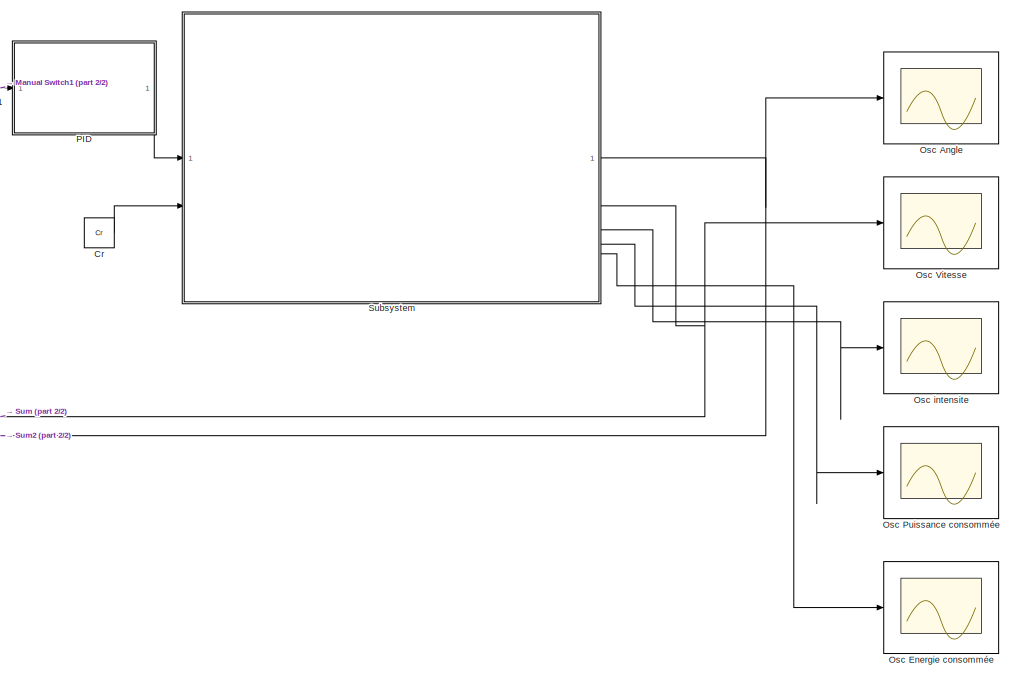
[diagram: root canvas - part 1/2, right side, full height]
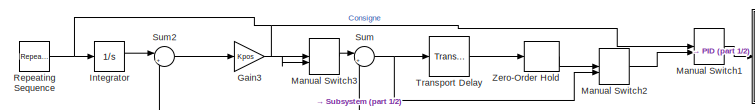
[diagram: root canvas - part 2/2, top left region]
MODEL slx_f45dd7cb239f
KIND model
CONFIG AbsTol = auto
CONFIG EnableMultiTasking = off
CONFIG FixedStep = auto
CONFIG InitFcn = parameters
CONFIG MaxStep = auto
CONFIG MinStep = auto
CONFIG RelTol = 1e-3
CONFIG SampleTimeConstraint = Unconstrained
CONFIG SolverName = ode23t
CONFIG StartFcn = parameters
CONFIG StartTime = 0.0
CONFIG StopTime = 0.9
BLOCK [Constant] Cr
  Value = Cr
BLOCK [Gain] Gain3
  Gain = Kpos
BLOCK [Integrator] Integrator
BLOCK [ManualSwitch] Manual Switch1
  CurrentSetting = 0
BLOCK [ManualSwitch] Manual Switch2
BLOCK [ManualSwitch] Manual Switch3
BLOCK [Scope] Osc Angle
  Floating = off
  NumInputPorts = 1
  ScopeSpecificationString = Simulink.scopes.TimeScopeBlockCfg('CurrentConfiguration', extmgr.ConfigurationSet(extmgr.Configuration('Core','General UI',true),extmgr.Configuration('Core','Source UI',true),extmgr.Configuration('Sources','WiredSimulink',true),extmgr.Configuration('Visuals','Time Domain',true,'SerializedDisplays',{struct('MinYLimReal','-3.1626','MaxYLimReal','28.46344','YLabelReal','','MinYLimMag','0.00000','MaxY...<+1486ch>
BLOCK [Scope] Osc Energie consommée
  Floating = off
  NumInputPorts = 1
  ScopeSpecificationString = Simulink.scopes.TimeScopeBlockCfg('CurrentConfiguration', extmgr.ConfigurationSet(extmgr.Configuration('Core','General UI',true),extmgr.Configuration('Core','Source UI',true),extmgr.Configuration('Sources','WiredSimulink',true,'DataLoggingVariableName','ScopeData4'),extmgr.Configuration('Visuals','Time Domain',true,'SerializedDisplays',{struct('MinYLimReal','-1504.04772','MaxYLimReal','7540.93661'...<+1575ch>
BLOCK [Scope] Osc Puissance consommée
  Floating = off
  NumInputPorts = 1
  ScopeSpecificationString = Simulink.scopes.TimeScopeBlockCfg('CurrentConfiguration', extmgr.ConfigurationSet(extmgr.Configuration('Core','General UI',true),extmgr.Configuration('Core','Source UI',true),extmgr.Configuration('Sources','WiredSimulink',true,'DataLoggingVariableName','ScopeData2'),extmgr.Configuration('Visuals','Time Domain',true,'SerializedDisplays',{struct('MinYLimReal','-2325.5345','MaxYLimReal','12684.7726',...<+1577ch>
BLOCK [Scope] Osc Vitesse
  Floating = off
  NumInputPorts = 1
  ScopeSpecificationString = Simulink.scopes.TimeScopeBlockCfg('CurrentConfiguration', extmgr.ConfigurationSet(extmgr.Configuration('Core','General UI',true),extmgr.Configuration('Core','Source UI',true),extmgr.Configuration('Sources','WiredSimulink',true,'DataLoggingVariableName','ScopeData3'),extmgr.Configuration('Visuals','Time Domain',true,'SerializedDisplays',{struct('MinYLimReal','-51.16338','MaxYLimReal','115.43279','Y...<+1557ch>
BLOCK [Scope] Osc intensite
  Floating = off
  NumInputPorts = 1
  ScopeSpecificationString = Simulink.scopes.TimeScopeBlockCfg('CurrentConfiguration', extmgr.ConfigurationSet(extmgr.Configuration('Core','General UI',true),extmgr.Configuration('Core','Source UI',true),extmgr.Configuration('Sources','WiredSimulink',true,'DataLoggingVariableName','ScopeData1'),extmgr.Configuration('Visuals','Time Domain',true,'SerializedDisplays',{struct('MinYLimReal','-293.18282','MaxYLimReal','299.32981','...<+1553ch>
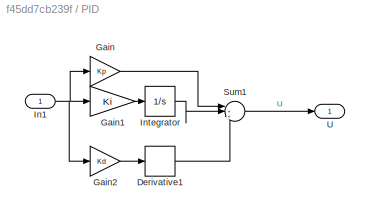
BLOCK [SubSystem] PID
BLOCK [Derivative] PID/Derivative1
BLOCK [Gain] PID/Gain
  Gain = Kp
BLOCK [Gain] PID/Gain1
  Gain = Ki
BLOCK [Gain] PID/Gain2
  Gain = Kd
BLOCK [Inport] PID/In1
BLOCK [Integrator] PID/Integrator
BLOCK [Sum] PID/Sum1
  Inputs = |+++
BLOCK [Outport] PID/U
BLOCK [Reference] Repeating Sequence  REF=simulink/Sources/Repeating
Sequence
  SourceBlock = simulink/Sources/Repeating\nSequence
  SourceType = Repeating table
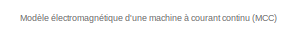
[diagram: Subsystem - part 1/4, top left region]
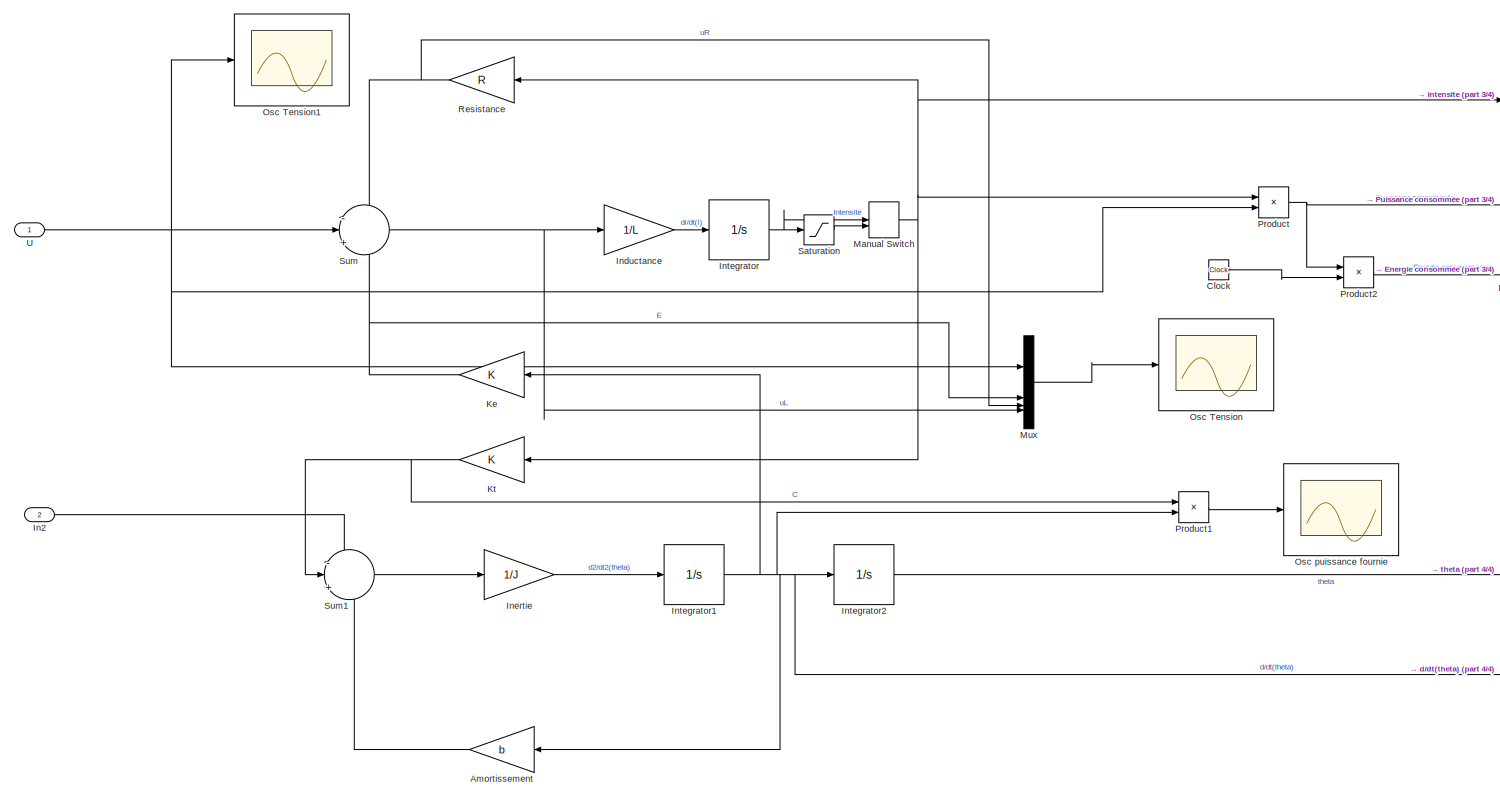
[diagram: Subsystem - part 2/4, most of the canvas]
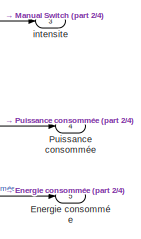
[diagram: Subsystem - part 3/4, top right region]
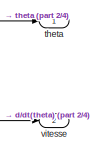
[diagram: Subsystem - part 4/4, bottom right region]
BLOCK [SubSystem] Subsystem
BLOCK [Gain] Subsystem/Amortissement
  Gain = b
BLOCK [Clock] Subsystem/Clock
BLOCK [Outport] Subsystem/Energie consommée
  Port = 5
BLOCK [Inport] Subsystem/In2
  Port = 2
BLOCK [Gain] Subsystem/Inductance
  Gain = 1/L
BLOCK [Gain] Subsystem/Inertie
  Gain = 1/J
BLOCK [Integrator] Subsystem/Integrator
BLOCK [Integrator] Subsystem/Integrator1
BLOCK [Integrator] Subsystem/Integrator2
BLOCK [Gain] Subsystem/Ke
  Gain = K
BLOCK [Gain] Subsystem/Kt
  Gain = K
BLOCK [ManualSwitch] Subsystem/Manual Switch
BLOCK [Mux] Subsystem/Mux
  DisplayOption = bar
BLOCK [Scope] Subsystem/Osc Tension
  Floating = off
  NumInputPorts = 1
  ScopeSpecificationString = Simulink.scopes.TimeScopeBlockCfg('CurrentConfiguration', extmgr.ConfigurationSet(extmgr.Configuration('Core','General UI',true),extmgr.Configuration('Core','Source UI',true),extmgr.Configuration('Sources','WiredSimulink',true,'DataLoggingVariableName','ScopeData1'),extmgr.Configuration('Visuals','Time Domain',true,'SerializedDisplays',{struct('MinYLimReal','-205.7943','MaxYLimReal','1021.86117','...<+1526ch>
BLOCK [Scope] Subsystem/Osc Tension1
  Floating = off
  NumInputPorts = 1
  ScopeSpecificationString = Simulink.scopes.TimeScopeBlockCfg('CurrentConfiguration', extmgr.ConfigurationSet(extmgr.Configuration('Core','General UI',true),extmgr.Configuration('Core','Source UI',true),extmgr.Configuration('Sources','WiredSimulink',true,'DataLoggingVariableName','ScopeData2'),extmgr.Configuration('Visuals','Time Domain',true,'SerializedDisplays',{struct('MinYLimReal','-1397.14632','MaxYLimReal','1204.7352',...<+1501ch>
BLOCK [Scope] Subsystem/Osc puissance fournie
  Floating = off
  NumInputPorts = 1
  ScopeSpecificationString = Simulink.scopes.TimeScopeBlockCfg('CurrentConfiguration', extmgr.ConfigurationSet(extmgr.Configuration('Core','General UI',true),extmgr.Configuration('Core','Source UI',true),extmgr.Configuration('Sources','WiredSimulink',true,'DataLoggingVariableName','ScopeData3'),extmgr.Configuration('Visuals','Time Domain',true,'SerializedDisplays',{struct('MinYLimReal','-772584.74574','MaxYLimReal','942785.18...<+1552ch>
BLOCK [Product] Subsystem/Product
BLOCK [Product] Subsystem/Product1
BLOCK [Product] Subsystem/Product2
BLOCK [Outport] Subsystem/Puissance consommée
  Port = 4
BLOCK [Gain] Subsystem/Resistance
  Gain = R
BLOCK [Saturate] Subsystem/Saturation
  LowerLimit = -104
  UpperLimit = 104
BLOCK [Sum] Subsystem/Sum
  Inputs = -|+|-
BLOCK [Sum] Subsystem/Sum1
  Inputs = -|+|-
BLOCK [Inport] Subsystem/U
BLOCK [Outport] Subsystem/intensite
  Port = 3
BLOCK [Outport] Subsystem/theta
BLOCK [Outport] Subsystem/vitesse
  Port = 2
BLOCK [Sum] Sum
  Inputs = |+-
BLOCK [Sum] Sum2
  Inputs = |+-
BLOCK [TransportDelay] Transport Delay
  DelayTime = 0.02
BLOCK [ZeroOrderHold] Zero-Order Hold
  SampleTime = 1/50
ANNOTATION Subsystem: Modèle électromagnétique d'une machine à courant continu (MCC)
LINE Cr:1 -> Subsystem:2
LINE Gain3:1 -> Manual Switch3:2
LINE Integrator:1 -> Sum2:1
LINE Manual Switch1:1 -> PID:1
LINE Manual Switch2:1 -> Manual Switch1:2
LINE Manual Switch3:1 -> Sum:1
LINE PID/Derivative1:1 -> PID/Sum1:3
LINE PID/Gain1:1 -> PID/Integrator:1
LINE PID/Gain2:1 -> PID/Derivative1:1
LINE PID/Gain:1 -> PID/Sum1:1
NET PID/In1:1 -> PID/Gain1:1, PID/Gain2:1, PID/Gain:1
LINE PID/Integrator:1 -> PID/Sum1:2
LINE PID/Sum1:1 -> PID/U:1
LINE PID:1 -> Subsystem:1
NET Repeating Sequence:1 -> Integrator:1, Manual Switch1:1, Manual Switch3:1
LINE Subsystem/Amortissement:1 -> Subsystem/Sum1:3
LINE Subsystem/Clock:1 -> Subsystem/Product2:2
LINE Subsystem/In2:1 -> Subsystem/Sum1:1
LINE Subsystem/Inductance:1 -> Subsystem/Integrator:1
LINE Subsystem/Inertie:1 -> Subsystem/Integrator1:1
NET Subsystem/Integrator1:1 -> Subsystem/Amortissement:1, Subsystem/Integrator2:1, Subsystem/Ke:1, Subsystem/Product1:2, Subsystem/vitesse:1
LINE Subsystem/Integrator2:1 -> Subsystem/theta:1
NET Subsystem/Integrator:1 -> Subsystem/Manual Switch:1, Subsystem/Saturation:1
NET Subsystem/Ke:1 -> Subsystem/Mux:2, Subsystem/Sum:3
NET Subsystem/Kt:1 -> Subsystem/Product1:1, Subsystem/Sum1:2
NET Subsystem/Manual Switch:1 -> Subsystem/Kt:1, Subsystem/Product:1, Subsystem/Resistance:1, Subsystem/intensite:1
LINE Subsystem/Mux:1 -> Subsystem/Osc Tension:1
LINE Subsystem/Product1:1 -> Subsystem/Osc puissance fournie:1
LINE Subsystem/Product2:1 -> Subsystem/Energie consommée:1
NET Subsystem/Product:1 -> Subsystem/Product2:1, Subsystem/Puissance consommée:1
NET Subsystem/Resistance:1 -> Subsystem/Mux:3, Subsystem/Sum:1
LINE Subsystem/Saturation:1 -> Subsystem/Manual Switch:2
LINE Subsystem/Sum1:1 -> Subsystem/Inertie:1
NET Subsystem/Sum:1 -> Subsystem/Inductance:1, Subsystem/Mux:4
NET Subsystem/U:1 -> Subsystem/Mux:1, Subsystem/Osc Tension1:1, Subsystem/Product:2, Subsystem/Sum:2
NET Subsystem:1 -> Osc Angle:1, Sum2:2
NET Subsystem:2 -> Osc Vitesse:1, Sum:2
LINE Subsystem:3 -> Osc intensite:1
LINE Subsystem:4 -> Osc Puissance consommée:1
LINE Subsystem:5 -> Osc Energie consommée:1
LINE Sum2:1 -> Gain3:1
NET Sum:1 -> Manual Switch2:2, Transport Delay:1
LINE Transport Delay:1 -> Zero-Order Hold:1
LINE Zero-Order Hold:1 -> Manual Switch2:1
note: NET lines group one-source signal fan-out (src -> all destinations, sorted); 1:1 wires keep LINE
